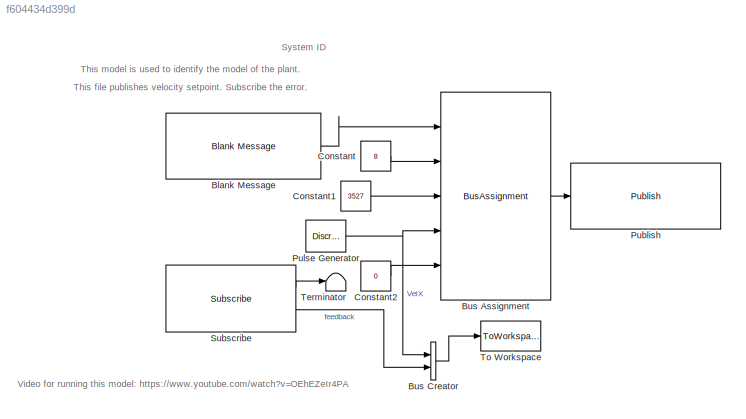
MODEL slx_f604434d399d
KIND model
CONFIG AbsTol = auto
CONFIG EnableMultiTasking = off
CONFIG FixedStep = 0.01
CONFIG MaxStep = auto
CONFIG MinStep = auto
CONFIG RelTol = 1e-3
CONFIG SampleTimeConstraint = Unconstrained
CONFIG Solver = FixedStepAuto
CONFIG SolverName = FixedStepAuto
CONFIG StartTime = 0.0
CONFIG StopTime = 50
BLOCK [Reference] Blank Message  REF=robotlib/Blank Message
  Ports = [0, 1]
  SourceBlock = robotlib/Blank Message
  SourceLibraryInfo = This block requires Robotics System Toolbox
  SourceProductBaseCode = RO
  SourceProductName = Robotics System Toolbox
  SourceType = ROS Blank Message
BLOCK [BusAssignment] Bus Assignment
  AssignedSignals = CoordinateFrame,TypeMask,Velocity.X,Velocity.Y
  Ports = [5, 1]
BLOCK [BusCreator] Bus Creator
  DisplayOption = bar
  InheritFromInputs = on
  Inputs = 2
  Ports = [2, 1]
BLOCK [Constant] Constant
  OutDataTypeStr = uint8
  Value = 8
BLOCK [Constant] Constant1
  OutDataTypeStr = uint16
  Value = 3527
BLOCK [Constant] Constant2
  Value = 0
BLOCK [Reference] Publish  REF=robotlib/Publish
  Ports = [1]
  SourceBlock = robotlib/Publish
  SourceLibraryInfo = This block requires Robotics System Toolbox
  SourceProductBaseCode = RO
  SourceProductName = Robotics System Toolbox
  SourceType = ROS Publish
BLOCK [DiscretePulseGenerator] Pulse Generator
  Amplitude = -0.1
  Period = 5
  Ports = [0, 1]
  PulseType = Time based
  PulseWidth = 25
  SampleTime = 0
BLOCK [Reference] Subscribe  REF=robotlib/Subscribe
  Ports = [0, 2]
  SourceBlock = robotlib/Subscribe
  SourceLibraryInfo = This block requires Robotics System Toolbox
  SourceProductBaseCode = RO
  SourceProductName = Robotics System Toolbox
  SourceType = ROS Subscribe
BLOCK [Terminator] Terminator
BLOCK [ToWorkspace] To Workspace
  FixptAsFi = on
  MaxDataPoints = inf
  Ports = [1]
  SampleTime = -1
  Save2DSignal = 3-D array (concatenate along third dimension)
  SaveFormat = Timeseries
  VariableName = simout
ANNOTATION (root): System ID
ANNOTATION (root): This file publishes velocity setpoint. Subscribe the error.
ANNOTATION (root): This model is used to identify the model of the plant.
ANNOTATION (root): Video for running this model: https://www.youtube.com/watch?v=OEhEZeIr4PA
LINE Blank Message:1 -> Bus Assignment:1
LINE Bus Assignment:1 -> Publish:1
LINE Bus Creator:1 -> To Workspace:1
LINE Constant1:1 -> Bus Assignment:3
LINE Constant2:1 -> Bus Assignment:5
LINE Constant:1 -> Bus Assignment:2
NET Pulse Generator:1 -> Bus Assignment:4, Bus Creator:1
LINE Subscribe:1 -> Terminator:1
LINE Subscribe:2 -> Bus Creator:2
note: NET lines group one-source signal fan-out (src -> all destinations, sorted); 1:1 wires keep LINE
